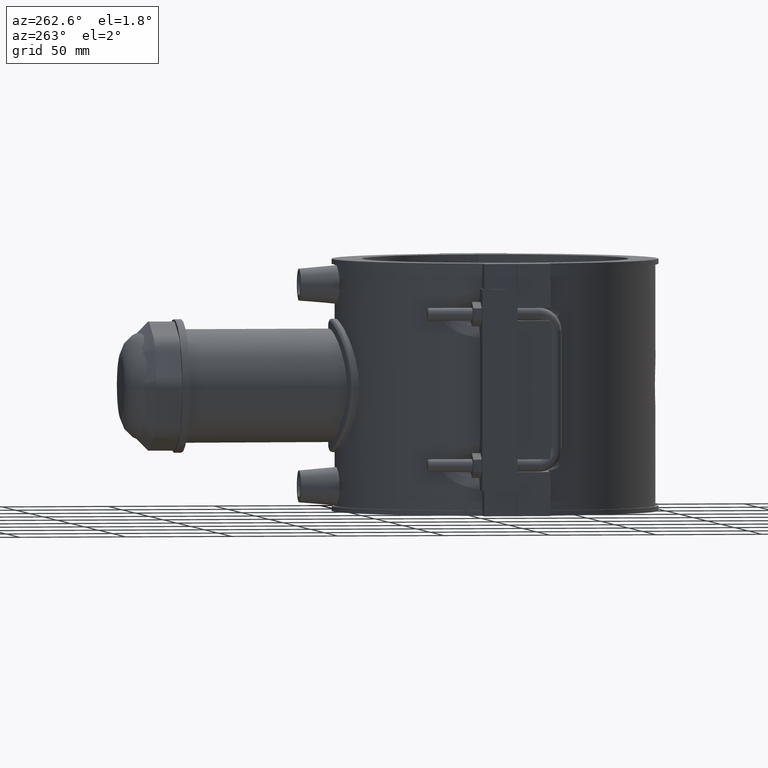
[diagram: clean part render]
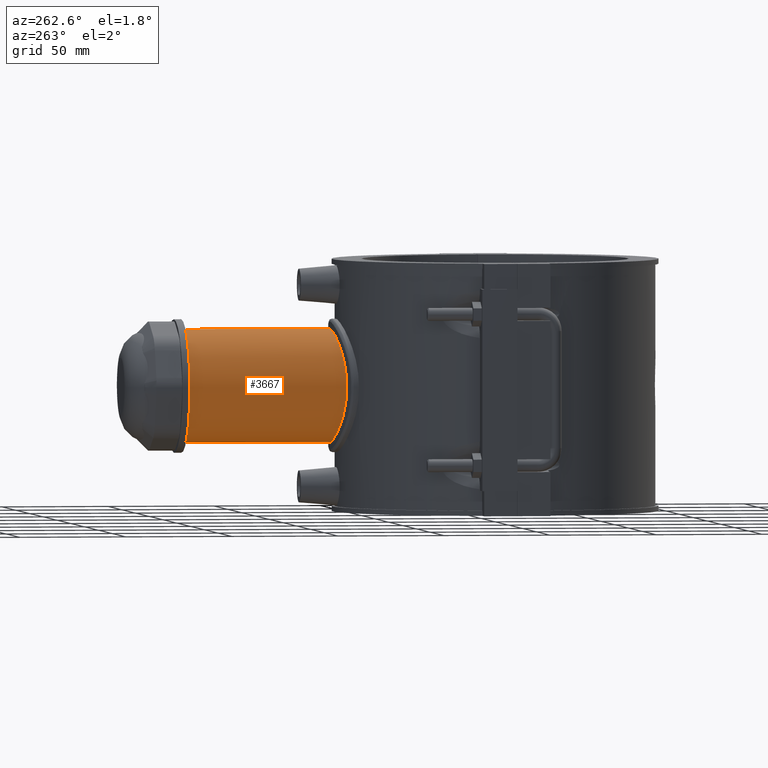
[diagram: same view with one face highlighted and labeled with its STEP entity id]
A machine part, auxiliary view. The second image highlights one B-rep face of the part: STEP entity #3667.
In plain terms, the highlighted cylindrical surface (bore or boss wall) has radius 26.5625 mm, axis along (0, 1, 0).
Its self-contained STEP definition (entity closure, byte-faithful):
#819=CIRCLE('',#3915,26.5625);
#912=FACE_BOUND('',#1253,.T.);
#1021=FACE_OUTER_BOUND('',#1252,.T.);
#1252=EDGE_LOOP('',(#2749,#2750,#2751));
#1253=EDGE_LOOP('',(#2752));
#1464=B_SPLINE_CURVE_WITH_KNOTS('',3,(#5263,#5264,#5265,#5266,#5267,#5268),
 .UNSPECIFIED.,.F.,.F.,(4,2,4),(0.,0.380937256212787,0.463649881670263),
 .UNSPECIFIED.);
#1465=B_SPLINE_CURVE_WITH_KNOTS('',3,(#5269,#5270,#5271,#5272,#5273,#5274,
#5275,#5276,#5277,#5278,#5279,#5280,#5281,#5282,#5283,#5284,#5285,#5286,
#5287,#5288,#5289,#5290),.UNSPECIFIED.,.F.,.F.,(4,2,2,2,2,2,2,2,2,2,4),
(2.5826615560026,2.66537418146008,3.04631143767286,3.42724869388565,3.80818595009844,
4.18882655330387,4.56946715650929,4.95010775971472,5.33074836292015,5.71168561913294,
6.09262287534573),.UNSPECIFIED.);
#1506=B_SPLINE_CURVE_WITH_KNOTS('',3,(#6025,#6026,#6027,#6028,#6029,#6030,
#6031,#6032,#6033,#6034,#6035,#6036,#6037,#6038,#6039,#6040,#6041,#6042,
#6043,#6044,#6045,#6046,#6047,#6048,#6049,#6050,#6051,#6052,#6053,#6054,
#6055,#6056,#6057,#6058,#6059,#6060,#6061,#6062,#6063,#6064,#6065,#6066,
#6067,#6068,#6069,#6070,#6071,#6072,#6073,#6074,#6075,#6076,#6077,#6078,
#6079,#6080,#6081,#6082,#6083,#6084,#6085,#6086),.UNSPECIFIED.,.F.,.F.,
(4,2,2,2,2,2,2,2,2,2,2,2,2,2,2,2,2,2,2,2,2,2,2,2,2,2,2,2,2,2,4),(0.873353324333543,
1.00962330039173,1.51443495058759,2.01924660078345,2.52380192762405,3.02835725446466,
3.53291258130526,4.03746790814586,4.54202323498646,5.04657856182706,5.55113388866766,
6.05568921550826,6.56050086570412,7.06531251589999,7.57012416609585,8.07493581629171,
8.57974746648758,9.08455911668344,9.58937076687931,10.0941824170752,10.5987377439158,
11.1032930707564,11.607848397597,12.1124037244376,12.6169590512782,13.1215143781188,
13.6260697049594,14.1306250318,14.6354366819958,15.1402483321917,15.2765183082499),
 .UNSPECIFIED.);
#1574=VERTEX_POINT('',#5217);
#1578=VERTEX_POINT('',#5255);
#1579=VERTEX_POINT('',#5262);
#1664=VERTEX_POINT('',#6087);
#1931=EDGE_CURVE('',#1579,#1578,#1464,.T.);
#1932=EDGE_CURVE('',#1574,#1579,#1465,.T.);
#2073=EDGE_CURVE('',#1574,#1578,#1506,.T.);
#2074=EDGE_CURVE('',#1664,#1664,#819,.T.);
#2749=ORIENTED_EDGE('',*,*,#2073,.F.);
#2750=ORIENTED_EDGE('',*,*,#1932,.T.);
#2751=ORIENTED_EDGE('',*,*,#1931,.T.);
#2752=ORIENTED_EDGE('',*,*,#2074,.F.);
#3559=CYLINDRICAL_SURFACE('',#3914,26.5625);
#3667=ADVANCED_FACE('',(#1021,#912),#3559,.T.);
#3914=AXIS2_PLACEMENT_3D('',#6024,#4391,#4392);
#3915=AXIS2_PLACEMENT_3D('',#6088,#4393,#4394);
#4391=DIRECTION('center_axis',(0.,1.,3.06161699786838E-16));
#4392=DIRECTION('ref_axis',(0.,0.,1.));
#4393=DIRECTION('center_axis',(0.,1.,3.06161699786838E-16));
#4394=DIRECTION('ref_axis',(1.,0.,0.));
#5217=CARTESIAN_POINT('',(25.0397406428337,73.8715871614697,8.86441169307973));
#5255=CARTESIAN_POINT('',(25.0397406428337,73.8715871614697,-8.86441169307974));
#5262=CARTESIAN_POINT('',(24.6082589032625,78.5,-10.));
#5263=CARTESIAN_POINT('Ctrl Pts',(24.6082589032625,78.5,-10.));
#5264=CARTESIAN_POINT('Ctrl Pts',(24.6082589032625,77.2302091459574,-10.));
#5265=CARTESIAN_POINT('Ctrl Pts',(24.7169130844114,75.8855227444209,-9.74365703232831));
#5266=CARTESIAN_POINT('Ctrl Pts',(24.9479169490869,74.3888261512239,-9.1204114045504));
#5267=CARTESIAN_POINT('Ctrl Pts',(24.9925486239404,74.1268962822143,-8.99771732205305));
#5268=CARTESIAN_POINT('Ctrl Pts',(25.039740645334,73.871587168846,-8.86441169307974));
#5269=CARTESIAN_POINT('Ctrl Pts',(25.039740645334,73.8715871688459,8.86441169307973));
#5270=CARTESIAN_POINT('Ctrl Pts',(24.9925486239404,74.1268962822142,8.99771732205304));
#5271=CARTESIAN_POINT('Ctrl Pts',(24.9479169490869,74.3888261512239,9.12041140455039));
#5272=CARTESIAN_POINT('Ctrl Pts',(24.7169130844114,75.8855227444209,9.7436570323283));
#5273=CARTESIAN_POINT('Ctrl Pts',(24.6082589032625,77.2302091459574,10.));
#5274=CARTESIAN_POINT('Ctrl Pts',(24.6082589032625,79.7697908540426,10.));
#5275=CARTESIAN_POINT('Ctrl Pts',(24.7169130844114,81.1144772555791,9.74365703232831));
#5276=CARTESIAN_POINT('Ctrl Pts',(25.0965011393766,83.5738653246177,8.71953305957087));
#5277=CARTESIAN_POINT('Ctrl Pts',(25.360661109092,84.6898357531586,7.95229987057234));
#5278=CARTESIAN_POINT('Ctrl Pts',(25.8472114771629,86.4516136154578,6.19052200827316));
#5279=CARTESIAN_POINT('Ctrl Pts',(26.1029459863978,87.2193703006133,5.07428661643324));
#5280=CARTESIAN_POINT('Ctrl Pts',(26.4627999016963,88.2438909435896,2.61388509264787));
#5281=CARTESIAN_POINT('Ctrl Pts',(26.5625,88.5,1.26880201068477));
#5282=CARTESIAN_POINT('Ctrl Pts',(26.5625,88.5,-1.26880201068476));
#5283=CARTESIAN_POINT('Ctrl Pts',(26.4627999016963,88.2438909435896,-2.61388509264787));
#5284=CARTESIAN_POINT('Ctrl Pts',(26.1029459863978,87.2193703006133,-5.07428661643323));
#5285=CARTESIAN_POINT('Ctrl Pts',(25.8472114771628,86.4516136154578,-6.19052200827316));
#5286=CARTESIAN_POINT('Ctrl Pts',(25.360661109092,84.6898357531586,-7.95229987057234));
#5287=CARTESIAN_POINT('Ctrl Pts',(25.0965011393766,83.5738653246177,-8.71953305957087));
#5288=CARTESIAN_POINT('Ctrl Pts',(24.7169130844114,81.1144772555791,-9.74365703232831));
#5289=CARTESIAN_POINT('Ctrl Pts',(24.6082589032625,79.7697908540426,-10.));
#5290=CARTESIAN_POINT('Ctrl Pts',(24.6082589032625,78.5,-10.));
#6024=CARTESIAN_POINT('Origin',(0.,107.95,1.39150492553118E-14));
#6025=CARTESIAN_POINT('Ctrl Pts',(25.039740644721,73.8715871526063,8.86441169481142));
#6026=CARTESIAN_POINT('Ctrl Pts',(24.8802355954608,73.9256534752473,9.31497346952406));
#6027=CARTESIAN_POINT('Ctrl Pts',(24.7085237345093,73.9832833559702,9.76132304165182));
#6028=CARTESIAN_POINT('Ctrl Pts',(23.8453892945493,74.2691726477351,11.836180069169));
#6029=CARTESIAN_POINT('Ctrl Pts',(23.0013062620911,74.5383661549884,13.3991195890588));
#6030=CARTESIAN_POINT('Ctrl Pts',(21.0559364406699,75.1110887903271,16.286314388399));
#6031=CARTESIAN_POINT('Ctrl Pts',(19.9544781985509,75.4140359660562,17.6105695519844));
#6032=CARTESIAN_POINT('Ctrl Pts',(17.6111646239568,75.9954171064243,19.9538831265786));
#6033=CARTESIAN_POINT('Ctrl Pts',(16.2871915674616,76.2947567467203,21.0552693138884));
#6034=CARTESIAN_POINT('Ctrl Pts',(13.3998388626485,76.8544522758591,23.0008976691995));
#6035=CARTESIAN_POINT('Ctrl Pts',(11.8364589552593,77.1143017274696,23.8452851029851));
#6036=CARTESIAN_POINT('Ctrl Pts',(8.56793992963195,77.54552015962,25.2049557847644));
#6037=CARTESIAN_POINT('Ctrl Pts',(6.85995437417577,77.7169064115054,25.7213188955568));
#6038=CARTESIAN_POINT('Ctrl Pts',(3.41693327162768,77.9442177663558,26.4001853547575));
#6039=CARTESIAN_POINT('Ctrl Pts',(1.68185108946867,78.,26.5625));
#6040=CARTESIAN_POINT('Ctrl Pts',(-1.68185108946867,78.,26.5625));
#6041=CARTESIAN_POINT('Ctrl Pts',(-3.41693327162768,77.9442177663558,26.4001853547575));
#6042=CARTESIAN_POINT('Ctrl Pts',(-6.85995437417577,77.7169064115054,25.7213188955568));
#6043=CARTESIAN_POINT('Ctrl Pts',(-8.56793992963195,77.54552015962,25.2049557847644));
#6044=CARTESIAN_POINT('Ctrl Pts',(-11.8364589552593,77.1143017274696,23.8452851029851));
#6045=CARTESIAN_POINT('Ctrl Pts',(-13.3998388626485,76.8544522758591,23.0008976691995));
#6046=CARTESIAN_POINT('Ctrl Pts',(-16.2871915674616,76.2947567467203,21.0552693138884));
#6047=CARTESIAN_POINT('Ctrl Pts',(-17.6111646239568,75.9954171064243,19.9538831265786));
#6048=CARTESIAN_POINT('Ctrl Pts',(-19.9544781985509,75.4140359660562,17.6105695519844));
#6049=CARTESIAN_POINT('Ctrl Pts',(-21.0559364406699,75.1110887903271,16.286314388399));
#6050=CARTESIAN_POINT('Ctrl Pts',(-23.0013062620911,74.5383661549884,13.3991195890588));
#6051=CARTESIAN_POINT('Ctrl Pts',(-23.8453892945493,74.2691726477351,11.836180069169));
#6052=CARTESIAN_POINT('Ctrl Pts',(-25.2047179763682,73.8189328054472,8.56854001496359));
#6053=CARTESIAN_POINT('Ctrl Pts',(-25.7210417669191,73.6380183735096,6.86097987799006));
#6054=CARTESIAN_POINT('Ctrl Pts',(-26.4000319892278,73.3973299972353,3.41809087311861));
#6055=CARTESIAN_POINT('Ctrl Pts',(-26.5625,73.3378046695563,1.68270550065289));
#6056=CARTESIAN_POINT('Ctrl Pts',(-26.5625,73.3378046695563,-1.68270550065287));
#6057=CARTESIAN_POINT('Ctrl Pts',(-26.4000319892278,73.3973299972353,-3.4180908731186));
#6058=CARTESIAN_POINT('Ctrl Pts',(-25.7210417669191,73.6380183735096,-6.86097987799005));
#6059=CARTESIAN_POINT('Ctrl Pts',(-25.2047179763682,73.8189328054472,-8.56854001496357));
#6060=CARTESIAN_POINT('Ctrl Pts',(-23.8453892945493,74.2691726477351,-11.836180069169));
#6061=CARTESIAN_POINT('Ctrl Pts',(-23.0013062620911,74.5383661549884,-13.3991195890588));
#6062=CARTESIAN_POINT('Ctrl Pts',(-21.0559364406699,75.1110887903271,-16.286314388399));
#6063=CARTESIAN_POINT('Ctrl Pts',(-19.9544781985509,75.4140359660562,-17.6105695519844));
#6064=CARTESIAN_POINT('Ctrl Pts',(-17.6111646239568,75.9954171064243,-19.9538831265786));
#6065=CARTESIAN_POINT('Ctrl Pts',(-16.2871915674615,76.2947567467203,-21.0552693138884));
#6066=CARTESIAN_POINT('Ctrl Pts',(-13.3998388626485,76.8544522758591,-23.0008976691995));
#6067=CARTESIAN_POINT('Ctrl Pts',(-11.8364589552593,77.1143017274696,-23.8452851029851));
#6068=CARTESIAN_POINT('Ctrl Pts',(-8.56793992963195,77.54552015962,-25.2049557847644));
#6069=CARTESIAN_POINT('Ctrl Pts',(-6.85995437417577,77.7169064115054,-25.7213188955568));
#6070=CARTESIAN_POINT('Ctrl Pts',(-3.41693327162768,77.9442177663558,-26.4001853547575));
#6071=CARTESIAN_POINT('Ctrl Pts',(-1.68185108946867,78.,-26.5625));
#6072=CARTESIAN_POINT('Ctrl Pts',(1.68185108946867,78.,-26.5625));
#6073=CARTESIAN_POINT('Ctrl Pts',(3.41693327162767,77.9442177663558,-26.4001853547575));
#6074=CARTESIAN_POINT('Ctrl Pts',(6.85995437417576,77.7169064115054,-25.7213188955568));
#6075=CARTESIAN_POINT('Ctrl Pts',(8.56793992963194,77.5455201596199,-25.2049557847644));
#6076=CARTESIAN_POINT('Ctrl Pts',(11.8364589552593,77.1143017274696,-23.8452851029851));
#6077=CARTESIAN_POINT('Ctrl Pts',(13.3998388626485,76.8544522758591,-23.0008976691995));
#6078=CARTESIAN_POINT('Ctrl Pts',(16.2871915674615,76.2947567467203,-21.0552693138884));
#6079=CARTESIAN_POINT('Ctrl Pts',(17.6111646239568,75.9954171064243,-19.9538831265786));
#6080=CARTESIAN_POINT('Ctrl Pts',(19.9544781985509,75.4140359660562,-17.6105695519844));
#6081=CARTESIAN_POINT('Ctrl Pts',(21.0559364406699,75.1110887903271,-16.286314388399));
#6082=CARTESIAN_POINT('Ctrl Pts',(23.0013062620911,74.5383661549884,-13.3991195890588));
#6083=CARTESIAN_POINT('Ctrl Pts',(23.8453892945493,74.2691726477351,-11.836180069169));
#6084=CARTESIAN_POINT('Ctrl Pts',(24.7085237345093,73.9832833559702,-9.76132304165182));
#6085=CARTESIAN_POINT('Ctrl Pts',(24.8802355954608,73.9256534752473,-9.31497346952406));
#6086=CARTESIAN_POINT('Ctrl Pts',(25.0397406447209,73.8715871526063,-8.86441169481144));
#6087=CARTESIAN_POINT('',(0.,148.,26.5625));
#6088=CARTESIAN_POINT('Origin',(0.,148.,2.61768253317747E-14));